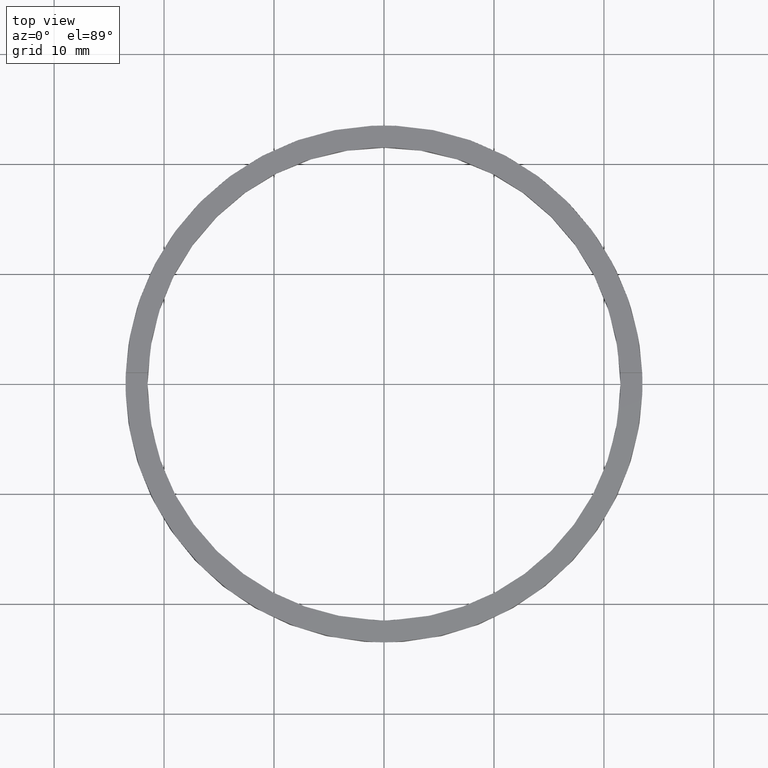
[diagram: clean part render]
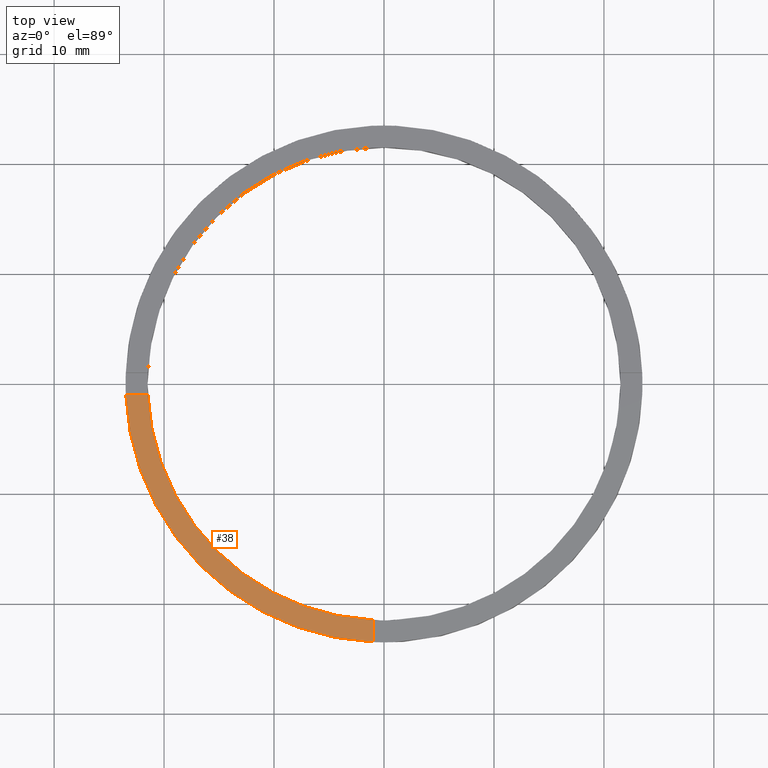
[diagram: same view with one face highlighted and labeled with its STEP entity id]
A machine part, top view. The second image highlights one B-rep face of the part: STEP entity #38.
In plain terms, the highlighted planar face has unit normal (0, 0, 1).
Its self-contained STEP definition (entity closure, byte-faithful):
#12 = ORIENTED_EDGE ( 'NONE', *, *, #695, .F. ) ;
#36 = DIRECTION ( 'NONE',  ( 1.000000000000000000, 0.000000000000000000, 0.000000000000000000 ) ) ;
#38 = ADVANCED_FACE ( 'NONE', ( #136 ), #605, .T. ) ;
#54 = DIRECTION ( 'NONE',  ( 0.000000000000000000, 0.000000000000000000, 1.000000000000000000 ) ) ;
#61 = CARTESIAN_POINT ( 'NONE',  ( 0.000000000000000000, 0.000000000000000000, 2.500000000000000000 ) ) ;
#63 = LINE ( 'NONE', #71, #593 ) ;
#71 = CARTESIAN_POINT ( 'NONE',  ( -1.000000000000162315, -13.50000000000018296, 2.500000000000000000 ) ) ;
#81 = AXIS2_PLACEMENT_3D ( 'NONE', #382, #54, #601 ) ;
#89 = CARTESIAN_POINT ( 'NONE',  ( -1.000000000000160760, -21.47673159491451500, 2.500000000000000000 ) ) ;
#92 = EDGE_CURVE ( 'NONE', #234, #580, #139, .T. ) ;
#93 = AXIS2_PLACEMENT_3D ( 'NONE', #250, #360, #36 ) ;
#131 = CARTESIAN_POINT ( 'NONE',  ( -1.000000000000160538, -23.47871376374778052, 2.500000000000000000 ) ) ;
#136 = FACE_OUTER_BOUND ( 'NONE', #144, .T. ) ;
#139 = LINE ( 'NONE', #708, #672 ) ;
#144 = EDGE_LOOP ( 'NONE', ( #12, #403, #658, #145 ) ) ;
#145 = ORIENTED_EDGE ( 'NONE', *, *, #204, .T. ) ;
#149 = DIRECTION ( 'NONE',  ( 1.000000000000000000, 0.000000000000000000, -0.000000000000000000 ) ) ;
#199 = CIRCLE ( 'NONE', #93, 21.50000000000000000 ) ;
#204 = EDGE_CURVE ( 'NONE', #234, #416, #442, .T. ) ;
#218 = VERTEX_POINT ( 'NONE', #89 ) ;
#234 = VERTEX_POINT ( 'NONE', #288 ) ;
#246 = DIRECTION ( 'NONE',  ( 1.000000000000000000, 1.734723475976806848E-16, -0.000000000000000000 ) ) ;
#250 = CARTESIAN_POINT ( 'NONE',  ( 0.000000000000000000, 0.000000000000000000, 2.500000000000000000 ) ) ;
#288 = CARTESIAN_POINT ( 'NONE',  ( -23.47871376374779118, -1.000000000000025535, 2.500000000000000000 ) ) ;
#335 = EDGE_CURVE ( 'NONE', #580, #218, #199, .T. ) ;
#360 = DIRECTION ( 'NONE',  ( 0.000000000000000000, 0.000000000000000000, 1.000000000000000000 ) ) ;
#382 = CARTESIAN_POINT ( 'NONE',  ( 0.000000000000000000, 0.000000000000000000, 2.500000000000000000 ) ) ;
#383 = AXIS2_PLACEMENT_3D ( 'NONE', #61, #722, #149 ) ;
#403 = ORIENTED_EDGE ( 'NONE', *, *, #335, .F. ) ;
#416 = VERTEX_POINT ( 'NONE', #131 ) ;
#442 = CIRCLE ( 'NONE', #81, 23.50000000000000355 ) ;
#580 = VERTEX_POINT ( 'NONE', #723 ) ;
#593 = VECTOR ( 'NONE', #662, 1000.000000000000000 ) ;
#601 = DIRECTION ( 'NONE',  ( 1.000000000000000000, 0.000000000000000000, 0.000000000000000000 ) ) ;
#605 = PLANE ( 'NONE',  #383 ) ;
#658 = ORIENTED_EDGE ( 'NONE', *, *, #92, .F. ) ;
#662 = DIRECTION ( 'NONE',  ( 1.301042606982605074E-16, -1.000000000000000000, 0.000000000000000000 ) ) ;
#672 = VECTOR ( 'NONE', #246, 1000.000000000000000 ) ;
#695 = EDGE_CURVE ( 'NONE', #218, #416, #63, .T. ) ;
#708 = CARTESIAN_POINT ( 'NONE',  ( -13.50000000000018829, -1.000000000000023981, 2.500000000000000000 ) ) ;
#722 = DIRECTION ( 'NONE',  ( 0.000000000000000000, 0.000000000000000000, 1.000000000000000000 ) ) ;
#723 = CARTESIAN_POINT ( 'NONE',  ( -21.47673159491452566, -1.000000000000025091, 2.500000000000000000 ) ) ;